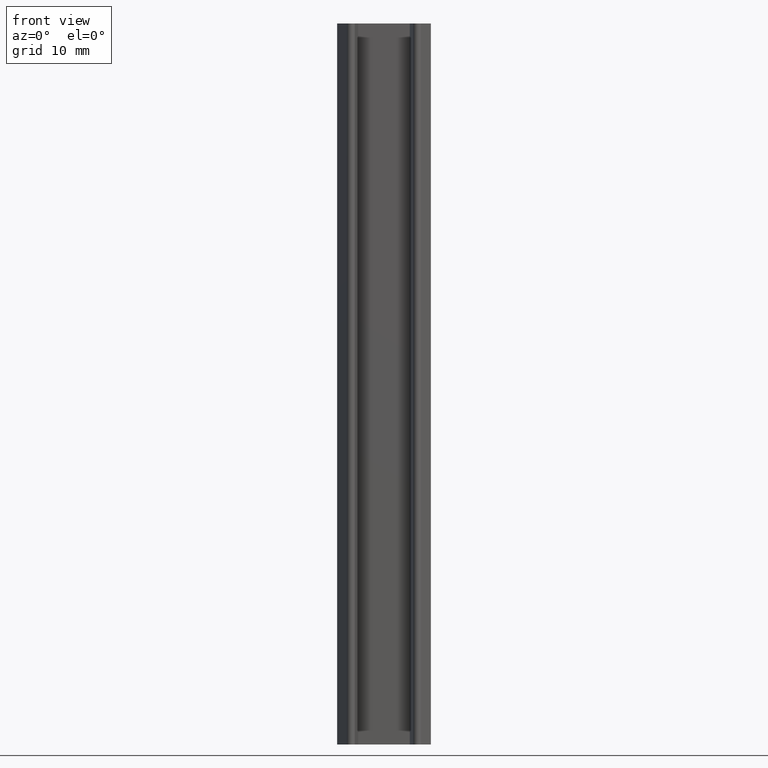
[diagram: clean part render]
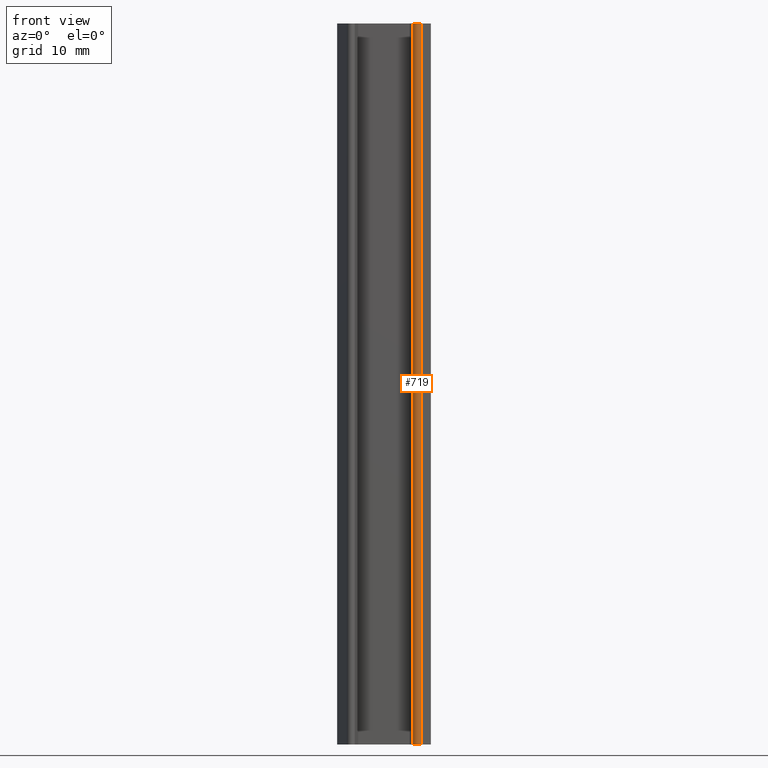
[diagram: same view with one face highlighted and labeled with its STEP entity id]
A machine part, front view. The second image highlights one B-rep face of the part: STEP entity #719.
In plain terms, the highlighted cylindrical surface (edge-blend (fillet) strip) has radius 0.6 mm, axis along (0, 0, 1).
Its self-contained STEP definition (entity closure, byte-faithful):
#142=CIRCLE('',#786,0.6);
#143=CIRCLE('',#787,0.6);
#170=CYLINDRICAL_SURFACE('',#785,0.6);
#198=FACE_OUTER_BOUND('',#228,.T.);
#228=EDGE_LOOP('',(#611,#612,#613,#614));
#232=LINE('',#1014,#298);
#296=LINE('',#1173,#362);
#298=VECTOR('',#813,10.);
#362=VECTOR('',#961,10.);
#364=VERTEX_POINT('',#1011);
#365=VERTEX_POINT('',#1013);
#417=VERTEX_POINT('',#1169);
#418=VERTEX_POINT('',#1171);
#420=EDGE_CURVE('',#364,#365,#232,.T.);
#500=EDGE_CURVE('',#417,#418,#296,.T.);
#501=EDGE_CURVE('',#364,#417,#142,.T.);
#502=EDGE_CURVE('',#365,#418,#143,.T.);
#611=ORIENTED_EDGE('',*,*,#501,.T.);
#612=ORIENTED_EDGE('',*,*,#500,.T.);
#613=ORIENTED_EDGE('',*,*,#502,.F.);
#614=ORIENTED_EDGE('',*,*,#420,.F.);
#719=ADVANCED_FACE('',(#198),#170,.T.);
#785=AXIS2_PLACEMENT_3D('',#1174,#962,#963);
#786=AXIS2_PLACEMENT_3D('',#1175,#964,#965);
#787=AXIS2_PLACEMENT_3D('',#1176,#966,#967);
#813=DIRECTION('',(0.,0.,1.));
#961=DIRECTION('',(0.,0.,1.));
#962=DIRECTION('center_axis',(0.,0.,1.));
#963=DIRECTION('ref_axis',(-0.996194698091745,-0.0871557427476587,0.));
#964=DIRECTION('center_axis',(0.,0.,1.));
#965=DIRECTION('ref_axis',(-0.996194698091745,-0.0871557427476587,0.));
#966=DIRECTION('center_axis',(0.,0.,1.));
#967=DIRECTION('ref_axis',(-0.996194698091745,-0.0871557427476587,0.));
#1011=CARTESIAN_POINT('',(4.01104215510354,-4.98002841743527,0.));
#1013=CARTESIAN_POINT('',(4.01104215510354,-4.98002841743527,100.));
#1014=CARTESIAN_POINT('',(4.01104215510354,-4.98002841743527,0.));
#1169=CARTESIAN_POINT('',(5.15492241852512,-5.17614087312402,0.));
#1171=CARTESIAN_POINT('',(5.15492241852512,-5.17614087312402,100.));
#1173=CARTESIAN_POINT('',(5.15492241852512,-5.17614087312402,0.));
#1174=CARTESIAN_POINT('Origin',(4.60875897395858,-4.92773497178668,0.));
#1175=CARTESIAN_POINT('Origin',(4.60875897395858,-4.92773497178668,0.));
#1176=CARTESIAN_POINT('Origin',(4.60875897395858,-4.92773497178668,100.));